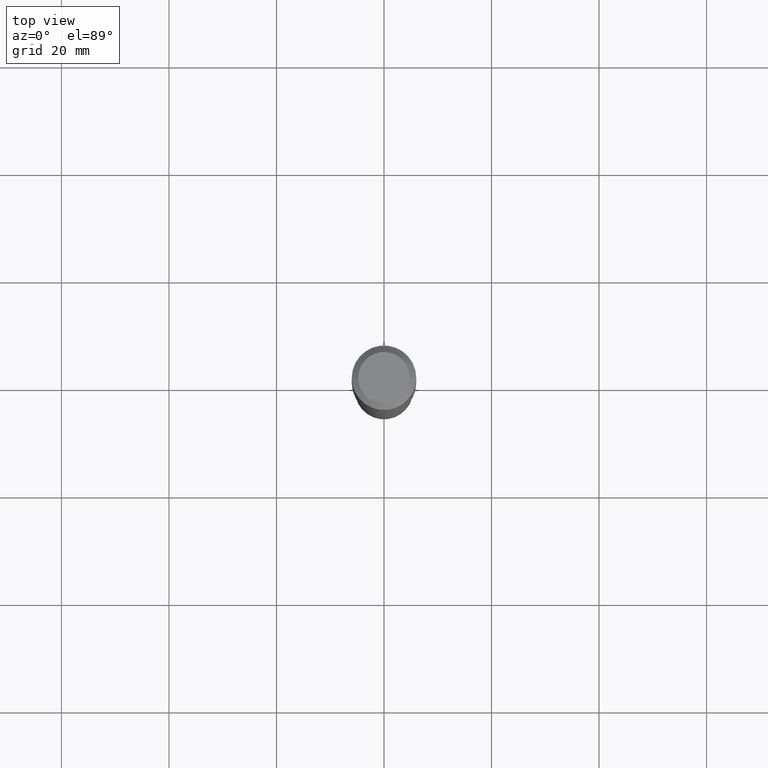
[diagram: clean part render]
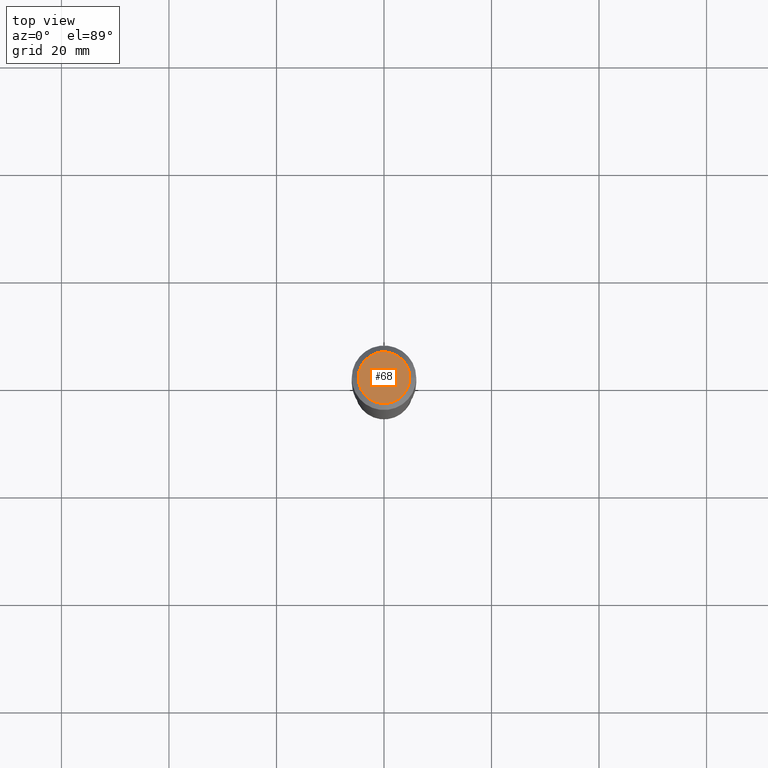
[diagram: same view with one face highlighted and labeled with its STEP entity id]
A machine part, top view. The second image highlights one B-rep face of the part: STEP entity #68.
In plain terms, the highlighted planar face has unit normal (0, -0, -1).
Its self-contained STEP definition (entity closure, byte-faithful):
#11 = AXIS2_PLACEMENT_3D ( 'NONE', #163, #77, #398 ) ;
#25 = EDGE_LOOP ( 'NONE', ( #229, #140 ) ) ;
#62 = DIRECTION ( 'NONE',  ( -2.445468806185136597E-29, 3.491481338843145583E-15, 1.000000000000000000 ) ) ;
#68 = ADVANCED_FACE ( 'NONE', ( #95 ), #442, .F. ) ;
#77 = DIRECTION ( 'NONE',  ( -2.445468806185136597E-29, 3.491481338843145583E-15, 1.000000000000000000 ) ) ;
#95 = FACE_OUTER_BOUND ( 'NONE', #25, .T. ) ;
#140 = ORIENTED_EDGE ( 'NONE', *, *, #240, .T. ) ;
#163 = CARTESIAN_POINT ( 'NONE',  ( -9.427742298522546243E-47, 1.346031739168365344E-32, 3.855188123715862256E-18 ) ) ;
#197 = CIRCLE ( 'NONE', #11, 0.1889600000000000168 ) ;
#223 = CIRCLE ( 'NONE', #242, 0.1889600000000000168 ) ;
#229 = ORIENTED_EDGE ( 'NONE', *, *, #454, .T. ) ;
#240 = EDGE_CURVE ( 'NONE', #407, #355, #223, .T. ) ;
#242 = AXIS2_PLACEMENT_3D ( 'NONE', #418, #62, #348 ) ;
#278 = DIRECTION ( 'NONE',  ( -1.000000000000000000, 6.982962677686265922E-15, -4.876176775795935793E-29 ) ) ;
#281 = CARTESIAN_POINT ( 'NONE',  ( -4.713871149261273121E-47, 6.730158695841826722E-33, 1.927594061857931128E-18 ) ) ;
#284 = AXIS2_PLACEMENT_3D ( 'NONE', #281, #364, #278 ) ;
#286 = CARTESIAN_POINT ( 'NONE',  ( 0.1889600000000000168, -1.540873453589747738E-15, 3.855188123725863225E-18 ) ) ;
#348 = DIRECTION ( 'NONE',  ( 1.000000000000000000, -6.982962677686266711E-15, 4.876185090822587894E-29 ) ) ;
#355 = VERTEX_POINT ( 'NONE', #484 ) ;
#364 = DIRECTION ( 'NONE',  ( 2.438088387897960049E-29, -3.491481338843145188E-15, -1.000000000000000000 ) ) ;
#398 = DIRECTION ( 'NONE',  ( 1.000000000000000000, -6.982962677686266711E-15, 4.876185090822587894E-29 ) ) ;
#407 = VERTEX_POINT ( 'NONE', #286 ) ;
#418 = CARTESIAN_POINT ( 'NONE',  ( -9.427742298522546243E-47, 1.346031739168365344E-32, 3.855188123715862256E-18 ) ) ;
#442 = PLANE ( 'NONE',  #284 ) ;
#454 = EDGE_CURVE ( 'NONE', #355, #407, #197, .T. ) ;
#484 = CARTESIAN_POINT ( 'NONE',  ( -0.1889600000000000168, 1.401969416799070942E-15, 3.855188123706346622E-18 ) ) ;